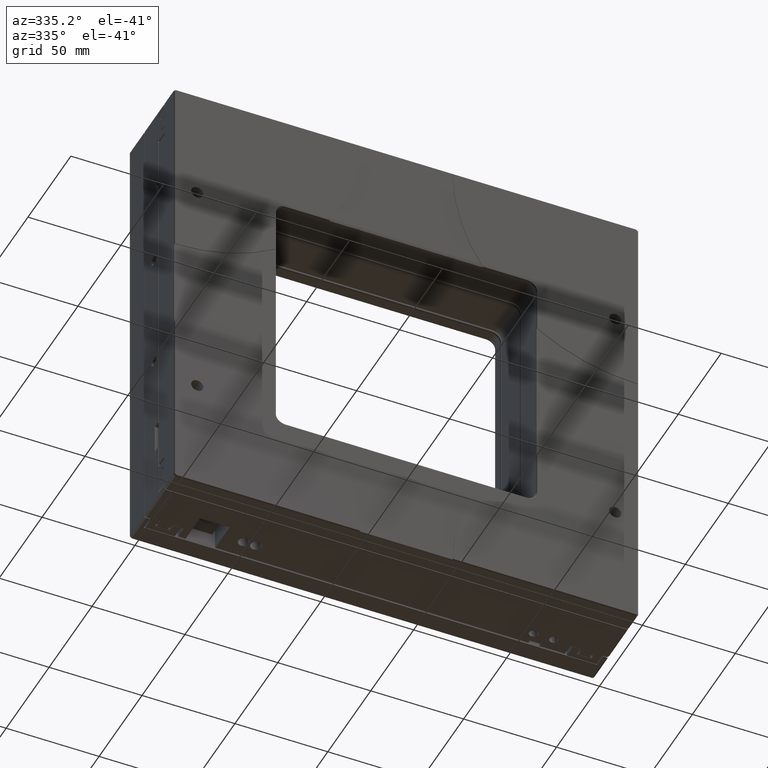
[diagram: clean part render]
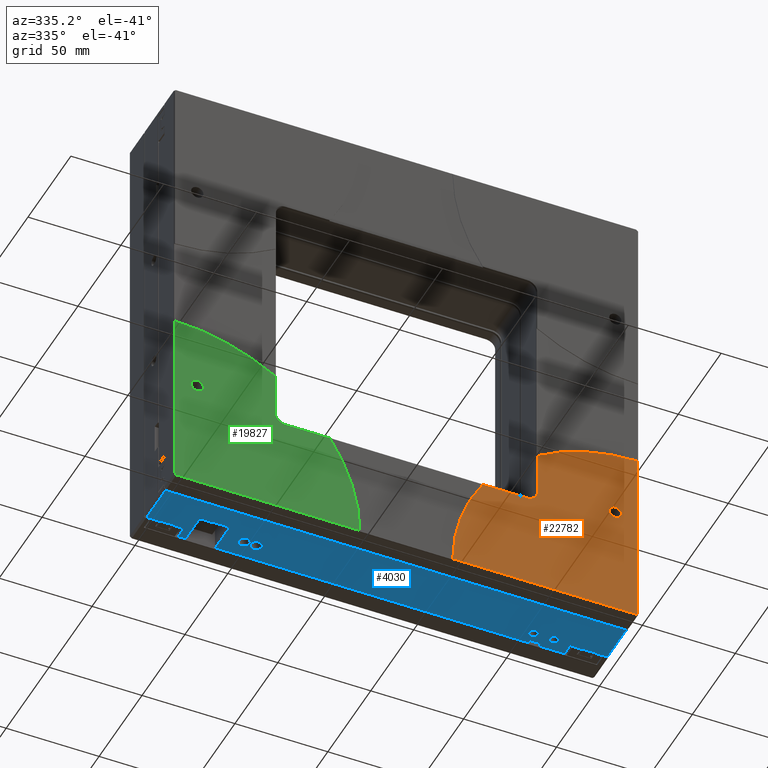
[diagram: same view with three faces highlighted in distinct colors, each labeled with its STEP entity id]
A machine part, auxiliary view with three faces highlighted in distinct colors.
Their STEP definitions:

[orange] entity #22782 — the highlighted planar face has unit normal (0, -1, -0).
#158 = VERTEX_POINT ( 'NONE', #1872 ) ;
#205 = EDGE_CURVE ( 'NONE', #3092, #4318, #18476, .T. ) ;
#487 = CARTESIAN_POINT ( 'NONE',  ( -61.24777213772141200, 9.027749076748583700E-015, 62.49999999999995700 ) ) ;
#620 = FACE_OUTER_BOUND ( 'NONE', #1025, .T. ) ;
#903 = AXIS2_PLACEMENT_3D ( 'NONE', #11614, #20793, #4041 ) ;
#1025 = EDGE_LOOP ( 'NONE', ( #13777, #7904, #13122, #13341, #5282, #1221, #9656, #17572 ) ) ;
#1221 = ORIENTED_EDGE ( 'NONE', *, *, #17431, .T. ) ;
#1379 = CARTESIAN_POINT ( 'NONE',  ( -106.5477721377214100, 9.333910776535423200E-015, 59.99999999999995700 ) ) ;
#1650 = AXIS2_PLACEMENT_3D ( 'NONE', #15291, #13428, #6036 ) ;
#1680 = DIRECTION ( 'NONE',  ( 0.0000000000000000000, -1.224646799147353200E-016, 1.000000000000000000 ) ) ;
#1694 = EDGE_CURVE ( 'NONE', #158, #10270, #18138, .T. ) ;
#1872 = CARTESIAN_POINT ( 'NONE',  ( -152.0465221299088200, 1.662055923146218000E-014, 0.4999999999999171800 ) ) ;
#1910 = CARTESIAN_POINT ( 'NONE',  ( -52.54777213772135300, 4.435476661752665800E-015, 99.99874999218738500 ) ) ;
#2093 = DIRECTION ( 'NONE',  ( -1.000000000000000000, 0.0000000000000000000, 0.0000000000000000000 ) ) ;
#2527 = CARTESIAN_POINT ( 'NONE',  ( -52.54777213772135300, 1.653396362583862400E-014, 1.207106781186503900 ) ) ;
#2577 = CARTESIAN_POINT ( 'NONE',  ( -135.8913765449748300, 1.000746651606646700E-014, 54.49999999999995000 ) ) ;
#3090 = AXIS2_PLACEMENT_3D ( 'NONE', #10990, #3739, #5825 ) ;
#3092 = VERTEX_POINT ( 'NONE', #12481 ) ;
#3283 = DIRECTION ( 'NONE',  ( 0.0000000000000000000, 1.224646799147353200E-016, -1.000000000000000000 ) ) ;
#3739 = DIRECTION ( 'NONE',  ( 0.0000000000000000000, -1.000000000000000000, -1.224646799147353200E-016 ) ) ;
#4041 = DIRECTION ( 'NONE',  ( -1.000000000000000000, 0.0000000000000000000, 0.0000000000000000000 ) ) ;
#4318 = VERTEX_POINT ( 'NONE', #1910 ) ;
#4548 = CARTESIAN_POINT ( 'NONE',  ( -106.5477721377214100, 9.333910776535423200E-015, 59.99999999999995700 ) ) ;
#5282 = ORIENTED_EDGE ( 'NONE', *, *, #14250, .T. ) ;
#5464 = CARTESIAN_POINT ( 'NONE',  ( -64.54777213772141000, 9.027749076748583700E-015, 62.49999999999995700 ) ) ;
#5825 = DIRECTION ( 'NONE',  ( -1.000000000000000000, 0.0000000000000000000, -0.0000000000000000000 ) ) ;
#6036 = DIRECTION ( 'NONE',  ( -1.000000000000000000, 0.0000000000000000000, 0.0000000000000000000 ) ) ;
#6092 = VERTEX_POINT ( 'NONE', #4548 ) ;
#6932 = CIRCLE ( 'NONE', #14923, 3.299999999999997200 ) ;
#7151 = DIRECTION ( 'NONE',  ( -0.0000000000000000000, 1.000000000000000000, 1.224646799147353200E-016 ) ) ;
#7489 = LINE ( 'NONE', #18080, #11769 ) ;
#7904 = ORIENTED_EDGE ( 'NONE', *, *, #15558, .T. ) ;
#8166 = VECTOR ( 'NONE', #2093, 1000.000000000000000 ) ;
#8689 = LINE ( 'NONE', #1379, #15847 ) ;
#9028 = VERTEX_POINT ( 'NONE', #9328 ) ;
#9120 = DIRECTION ( 'NONE',  ( 0.0000000000000000000, 1.000000000000000000, 1.224646799147353200E-016 ) ) ;
#9328 = CARTESIAN_POINT ( 'NONE',  ( -112.0477721377214200, 1.000746651606646700E-014, 54.49999999999995000 ) ) ;
#9656 = ORIENTED_EDGE ( 'NONE', *, *, #205, .F. ) ;
#9789 = LINE ( 'NONE', #22406, #23043 ) ;
#10270 = VERTEX_POINT ( 'NONE', #2577 ) ;
#10714 = EDGE_CURVE ( 'NONE', #18046, #22273, #6932, .T. ) ;
#10990 = CARTESIAN_POINT ( 'NONE',  ( -177.0477721377214100, 1.373706582077625900E-015, 124.9999999999999600 ) ) ;
#11138 = PLANE ( 'NONE',  #3090 ) ;
#11614 = CARTESIAN_POINT ( 'NONE',  ( -52.04777213772141000, 1.668179157141953800E-014, -2.775557561562891400E-014 ) ) ;
#11688 = AXIS2_PLACEMENT_3D ( 'NONE', #18130, #7151, #21848 ) ;
#11769 = VECTOR ( 'NONE', #1680, 1000.000000000000000 ) ;
#12481 = CARTESIAN_POINT ( 'NONE',  ( -106.5477721377214100, 6.413911394787560400E-015, 83.84360440725336600 ) ) ;
#13091 = CARTESIAN_POINT ( 'NONE',  ( -135.5642375801717800, 1.000746651606646700E-014, 54.49999999999995000 ) ) ;
#13122 = ORIENTED_EDGE ( 'NONE', *, *, #1694, .F. ) ;
#13341 = ORIENTED_EDGE ( 'NONE', *, *, #23416, .T. ) ;
#13428 = DIRECTION ( 'NONE',  ( 0.0000000000000000000, 1.000000000000000000, 1.224646799147353200E-016 ) ) ;
#13777 = ORIENTED_EDGE ( 'NONE', *, *, #16524, .T. ) ;
#14250 = EDGE_CURVE ( 'NONE', #22003, #23620, #15019, .T. ) ;
#14315 = CARTESIAN_POINT ( 'NONE',  ( -53.25487891890797000, 1.662055923146218000E-014, 0.4999999999999171800 ) ) ;
#14496 = CARTESIAN_POINT ( 'NONE',  ( -67.84777213772140700, 9.027749076748583700E-015, 62.49999999999995700 ) ) ;
#14923 = AXIS2_PLACEMENT_3D ( 'NONE', #15229, #18707, #16932 ) ;
#15019 = LINE ( 'NONE', #15711, #16196 ) ;
#15229 = CARTESIAN_POINT ( 'NONE',  ( -64.54777213772141000, 9.027749076748583700E-015, 62.49999999999995700 ) ) ;
#15291 = CARTESIAN_POINT ( 'NONE',  ( -52.04777213772141000, 1.668179157141953800E-014, -2.775557561562891400E-014 ) ) ;
#15558 = EDGE_CURVE ( 'NONE', #9028, #10270, #21122, .T. ) ;
#15679 = ORIENTED_EDGE ( 'NONE', *, *, #19520, .T. ) ;
#15711 = CARTESIAN_POINT ( 'NONE',  ( -52.90132552831897100, 1.657726142865092800E-014, 0.8535533905889014500 ) ) ;
#15847 = VECTOR ( 'NONE', #3283, 1000.000000000000000 ) ;
#16196 = VECTOR ( 'NONE', #21197, 1000.000000000000000 ) ;
#16377 = EDGE_LOOP ( 'NONE', ( #15679, #20908 ) ) ;
#16524 = EDGE_CURVE ( 'NONE', #6092, #9028, #17601, .T. ) ;
#16860 = AXIS2_PLACEMENT_3D ( 'NONE', #5464, #9120, #21989 ) ;
#16932 = DIRECTION ( 'NONE',  ( 1.000000000000000000, 0.0000000000000000000, 0.0000000000000000000 ) ) ;
#16950 = EDGE_CURVE ( 'NONE', #3092, #6092, #8689, .T. ) ;
#17431 = EDGE_CURVE ( 'NONE', #23620, #4318, #7489, .T. ) ;
#17572 = ORIENTED_EDGE ( 'NONE', *, *, #16950, .T. ) ;
#17601 = CIRCLE ( 'NONE', #11688, 5.500000000000005300 ) ;
#18046 = VERTEX_POINT ( 'NONE', #14496 ) ;
#18080 = CARTESIAN_POINT ( 'NONE',  ( -52.54777213772135300, 1.373706582077625900E-015, 124.9999999999999600 ) ) ;
#18130 = CARTESIAN_POINT ( 'NONE',  ( -112.0477721377214200, 9.333910776535423200E-015, 59.99999999999995700 ) ) ;
#18138 = CIRCLE ( 'NONE', #903, 100.0000000000000000 ) ;
#18476 = CIRCLE ( 'NONE', #1650, 100.0000000000000000 ) ;
#18546 = DIRECTION ( 'NONE',  ( 1.000000000000000000, 0.0000000000000000000, 0.0000000000000000000 ) ) ;
#18707 = DIRECTION ( 'NONE',  ( 0.0000000000000000000, 1.000000000000000000, 1.224646799147353200E-016 ) ) ;
#19520 = EDGE_CURVE ( 'NONE', #22273, #18046, #23257, .T. ) ;
#20793 = DIRECTION ( 'NONE',  ( 0.0000000000000000000, 1.000000000000000000, 1.224646799147353200E-016 ) ) ;
#20908 = ORIENTED_EDGE ( 'NONE', *, *, #10714, .T. ) ;
#21122 = LINE ( 'NONE', #13091, #8166 ) ;
#21197 = DIRECTION ( 'NONE',  ( 0.7071067811865721100, -8.659560562354633300E-017, 0.7071067811865230400 ) ) ;
#21848 = DIRECTION ( 'NONE',  ( -1.000000000000000000, 0.0000000000000000000, 0.0000000000000000000 ) ) ;
#21989 = DIRECTION ( 'NONE',  ( 1.000000000000000000, 0.0000000000000000000, 0.0000000000000000000 ) ) ;
#22003 = VERTEX_POINT ( 'NONE', #14315 ) ;
#22273 = VERTEX_POINT ( 'NONE', #487 ) ;
#22406 = CARTESIAN_POINT ( 'NONE',  ( -53.04777213772146600, 1.662055923146218000E-014, 0.4999999999999171800 ) ) ;
#22782 = ADVANCED_FACE ( 'NONE', ( #620, #23374 ), #11138, .T. ) ;
#23043 = VECTOR ( 'NONE', #18546, 1000.000000000000000 ) ;
#23257 = CIRCLE ( 'NONE', #16860, 3.299999999999997200 ) ;
#23374 = FACE_BOUND ( 'NONE', #16377, .T. ) ;
#23416 = EDGE_CURVE ( 'NONE', #158, #22003, #9789, .T. ) ;
#23620 = VERTEX_POINT ( 'NONE', #2527 ) ;

[blue] entity #4030 — the highlighted planar face has unit normal (-0, -0, 1).
#20 = CARTESIAN_POINT ( 'NONE',  ( -277.0477721377215500, 40.80000000000006100, -4.163336342344337000E-014 ) ) ;
#69 = DIRECTION ( 'NONE',  ( 1.000000000000000000, -5.268570399476662800E-032, 4.302114212150675500E-016 ) ) ;
#119 = DIRECTION ( 'NONE',  ( 0.0000000000000000000, 1.000000000000000000, 1.224646799147346600E-016 ) ) ;
#195 = VERTEX_POINT ( 'NONE', #13111 ) ;
#397 = ORIENTED_EDGE ( 'NONE', *, *, #3860, .T. ) ;
#440 = VERTEX_POINT ( 'NONE', #16352 ) ;
#513 = VECTOR ( 'NONE', #858, 1000.000000000000000 ) ;
#541 = EDGE_CURVE ( 'NONE', #8232, #3272, #23407, .T. ) ;
#858 = DIRECTION ( 'NONE',  ( 1.000000000000000000, -5.268570399476662800E-032, 4.302114212150675500E-016 ) ) ;
#1022 = CARTESIAN_POINT ( 'NONE',  ( -287.0477721377215500, 34.00000000000004300, -4.163336342344337000E-014 ) ) ;
#1130 = AXIS2_PLACEMENT_3D ( 'NONE', #8519, #15910, #8690 ) ;
#1415 = CARTESIAN_POINT ( 'NONE',  ( -287.0477721377215500, 34.30000000000001100, -4.163336342344337000E-014 ) ) ;
#1581 = DIRECTION ( 'NONE',  ( -9.714451382752058500E-017, -1.224646799147353200E-016, 1.000000000000000000 ) ) ;
#1638 = AXIS2_PLACEMENT_3D ( 'NONE', #9150, #14907, #119 ) ;
#1784 = CARTESIAN_POINT ( 'NONE',  ( -92.54777213772152300, 12.00000000000004600, 4.163336342344337000E-014 ) ) ;
#1799 = ORIENTED_EDGE ( 'NONE', *, *, #13390, .T. ) ;
#1813 = CARTESIAN_POINT ( 'NONE',  ( -287.0477721377215500, 34.00000000000004300, -4.163336342344337000E-014 ) ) ;
#1828 = EDGE_LOOP ( 'NONE', ( #8305, #11443 ) ) ;
#1970 = VERTEX_POINT ( 'NONE', #19799 ) ;
#2023 = LINE ( 'NONE', #11069, #4090 ) ;
#2129 = DIRECTION ( 'NONE',  ( 0.0000000000000000000, 1.000000000000000000, 1.224646799147353000E-016 ) ) ;
#2132 = VERTEX_POINT ( 'NONE', #20284 ) ;
#2283 = VECTOR ( 'NONE', #4537, 1000.000000000000000 ) ;
#2285 = EDGE_CURVE ( 'NONE', #3284, #23711, #10896, .T. ) ;
#2336 = VERTEX_POINT ( 'NONE', #4551 ) ;
#2511 = CARTESIAN_POINT ( 'NONE',  ( -93.04777213772152300, 31.15000000000003800, 4.134557142564374500E-014 ) ) ;
#2572 = CARTESIAN_POINT ( 'NONE',  ( -243.5477721377214900, 31.00000000000004300, -4.163336342344337000E-014 ) ) ;
#2611 = CARTESIAN_POINT ( 'NONE',  ( -52.04777213772152300, 39.00000000000004300, 5.551115123125782700E-014 ) ) ;
#2721 = ORIENTED_EDGE ( 'NONE', *, *, #4724, .F. ) ;
#2822 = DIRECTION ( 'NONE',  ( -9.714451382752058500E-017, -1.224646799147353200E-016, 1.000000000000000000 ) ) ;
#2951 = VECTOR ( 'NONE', #8617, 1000.000000000000000 ) ;
#3158 = EDGE_CURVE ( 'NONE', #8511, #19379, #11284, .T. ) ;
#3159 = CARTESIAN_POINT ( 'NONE',  ( -250.0477721377214900, 31.00000000000004300, -4.163336342344337000E-014 ) ) ;
#3272 = VERTEX_POINT ( 'NONE', #11432 ) ;
#3284 = VERTEX_POINT ( 'NONE', #5880 ) ;
#3368 = DIRECTION ( 'NONE',  ( 0.0000000000000000000, 1.000000000000000000, 1.224646799147345300E-016 ) ) ;
#3418 = DIRECTION ( 'NONE',  ( 0.0000000000000000000, 1.000000000000000000, 1.224646799147345300E-016 ) ) ;
#3462 = CARTESIAN_POINT ( 'NONE',  ( -60.04777213772151600, 34.30000000000006800, 5.551115123125782700E-014 ) ) ;
#3491 = LINE ( 'NONE', #16791, #2283 ) ;
#3796 = CARTESIAN_POINT ( 'NONE',  ( -86.54777213772152300, 12.00000000000004600, 4.163336342344337000E-014 ) ) ;
#3836 = LINE ( 'NONE', #8227, #12083 ) ;
#3860 = EDGE_CURVE ( 'NONE', #11099, #440, #10944, .T. ) ;
#3987 = ORIENTED_EDGE ( 'NONE', *, *, #9146, .T. ) ;
#4024 = LINE ( 'NONE', #22200, #12293 ) ;
#4030 = ADVANCED_FACE ( 'NONE', ( #18446, #17278, #17577, #20747, #12356 ), #23245, .F. ) ;
#4090 = VECTOR ( 'NONE', #18507, 1000.000000000000000 ) ;
#4154 = CIRCLE ( 'NONE', #23408, 2.350000000000005000 ) ;
#4283 = EDGE_CURVE ( 'NONE', #15007, #11099, #19872, .T. ) ;
#4289 = CARTESIAN_POINT ( 'NONE',  ( -73.04777213772148100, 40.80000000000006100, 4.163336342344337000E-014 ) ) ;
#4347 = EDGE_CURVE ( 'NONE', #1970, #8190, #2023, .T. ) ;
#4385 = VECTOR ( 'NONE', #11716, 1000.000000000000000 ) ;
#4389 = DIRECTION ( 'NONE',  ( -9.714451382752058500E-017, -1.224646799147353200E-016, 1.000000000000000000 ) ) ;
#4458 = CARTESIAN_POINT ( 'NONE',  ( -92.54777213772152300, 40.80000000000006100, 4.163336342344337000E-014 ) ) ;
#4530 = VERTEX_POINT ( 'NONE', #20983 ) ;
#4537 = DIRECTION ( 'NONE',  ( -1.000000000000000000, 5.268570399476662800E-032, -4.302114212150676000E-016 ) ) ;
#4551 = CARTESIAN_POINT ( 'NONE',  ( -73.04777213772148100, 40.80000000000006100, 4.163336342344337000E-014 ) ) ;
#4724 = EDGE_CURVE ( 'NONE', #6382, #23502, #11470, .T. ) ;
#4886 = EDGE_CURVE ( 'NONE', #16403, #17939, #15496, .T. ) ;
#4923 = AXIS2_PLACEMENT_3D ( 'NONE', #17919, #23505, #3418 ) ;
#5024 = VERTEX_POINT ( 'NONE', #8000 ) ;
#5056 = ORIENTED_EDGE ( 'NONE', *, *, #15501, .T. ) ;
#5542 = DIRECTION ( 'NONE',  ( 0.0000000000000000000, -1.000000000000000000, -1.224646799147353000E-016 ) ) ;
#5624 = EDGE_CURVE ( 'NONE', #9455, #4530, #14579, .T. ) ;
#5695 = VECTOR ( 'NONE', #8323, 1000.000000000000000 ) ;
#5732 = VERTEX_POINT ( 'NONE', #17928 ) ;
#5767 = ORIENTED_EDGE ( 'NONE', *, *, #6537, .F. ) ;
#5773 = CARTESIAN_POINT ( 'NONE',  ( -86.54777213772152300, 39.00000000000004300, 2.775557561562891400E-014 ) ) ;
#5880 = CARTESIAN_POINT ( 'NONE',  ( -243.5477721377214900, 34.00000000000005000, -4.126596938369916500E-014 ) ) ;
#6077 = VECTOR ( 'NONE', #20171, 1000.000000000000000 ) ;
#6084 = ORIENTED_EDGE ( 'NONE', *, *, #19166, .T. ) ;
#6086 = LINE ( 'NONE', #23200, #19553 ) ;
#6155 = DIRECTION ( 'NONE',  ( 1.000000000000000000, -5.268570399476662800E-032, 4.302114212150675500E-016 ) ) ;
#6273 = ORIENTED_EDGE ( 'NONE', *, *, #13850, .F. ) ;
#6382 = VERTEX_POINT ( 'NONE', #1813 ) ;
#6529 = VECTOR ( 'NONE', #5542, 1000.000000000000000 ) ;
#6537 = EDGE_CURVE ( 'NONE', #17784, #3272, #22638, .T. ) ;
#6643 = VECTOR ( 'NONE', #13871, 1000.000000000000000 ) ;
#6694 = CARTESIAN_POINT ( 'NONE',  ( -281.0477721377215500, 34.30000000000001100, -4.163336342344337000E-014 ) ) ;
#6812 = DIRECTION ( 'NONE',  ( 1.000000000000000000, -5.268570399476662800E-032, 4.302114212150675500E-016 ) ) ;
#6898 = CARTESIAN_POINT ( 'NONE',  ( -93.04777213772152300, 33.50000000000004300, 4.163336342344337000E-014 ) ) ;
#7010 = VECTOR ( 'NONE', #12783, 1000.000000000000000 ) ;
#7242 = CARTESIAN_POINT ( 'NONE',  ( -73.04777213772148100, 34.50000000000003600, 4.163336342344337000E-014 ) ) ;
#7259 = EDGE_CURVE ( 'NONE', #8480, #10580, #23496, .T. ) ;
#7330 = VECTOR ( 'NONE', #6812, 1000.000000000000000 ) ;
#7392 = ORIENTED_EDGE ( 'NONE', *, *, #541, .T. ) ;
#7483 = CIRCLE ( 'NONE', #16487, 3.000000000000009800 ) ;
#7484 = DIRECTION ( 'NONE',  ( 1.000000000000000000, -5.268570399476662800E-032, 4.302114212150675500E-016 ) ) ;
#7485 = VECTOR ( 'NONE', #9111, 1000.000000000000000 ) ;
#7529 = DIRECTION ( 'NONE',  ( 0.0000000000000000000, 1.000000000000000000, 1.224646799147353000E-016 ) ) ;
#7696 = ORIENTED_EDGE ( 'NONE', *, *, #23850, .T. ) ;
#7713 = VERTEX_POINT ( 'NONE', #6694 ) ;
#8000 = CARTESIAN_POINT ( 'NONE',  ( -60.04777213772151600, 34.00000000000004300, 5.551115123125782700E-014 ) ) ;
#8116 = CARTESIAN_POINT ( 'NONE',  ( -243.5477721377214900, 31.00000000000004300, -4.163336342344337000E-014 ) ) ;
#8190 = VERTEX_POINT ( 'NONE', #13756 ) ;
#8193 = LINE ( 'NONE', #22449, #9919 ) ;
#8227 = CARTESIAN_POINT ( 'NONE',  ( -301.0477721377215500, 12.00000000000004600, -4.163336342344337000E-014 ) ) ;
#8232 = VERTEX_POINT ( 'NONE', #20866 ) ;
#8274 = EDGE_CURVE ( 'NONE', #440, #22208, #13028, .T. ) ;
#8305 = ORIENTED_EDGE ( 'NONE', *, *, #22034, .T. ) ;
#8323 = DIRECTION ( 'NONE',  ( 0.0000000000000000000, 1.000000000000000000, 1.224646799147353000E-016 ) ) ;
#8384 = DIRECTION ( 'NONE',  ( -9.714451382752059700E-017, -1.224646799147353200E-016, 1.000000000000000000 ) ) ;
#8480 = VERTEX_POINT ( 'NONE', #2511 ) ;
#8511 = VERTEX_POINT ( 'NONE', #5773 ) ;
#8519 = CARTESIAN_POINT ( 'NONE',  ( -52.04777213772152300, 12.00000000000004600, 5.551115123125782700E-014 ) ) ;
#8617 = DIRECTION ( 'NONE',  ( 0.0000000000000000000, -1.000000000000000000, -1.224646799147353000E-016 ) ) ;
#8631 = ORIENTED_EDGE ( 'NONE', *, *, #23890, .T. ) ;
#8690 = DIRECTION ( 'NONE',  ( -0.0000000000000000000, 1.000000000000000000, 1.224646799147353000E-016 ) ) ;
#8701 = ORIENTED_EDGE ( 'NONE', *, *, #20477, .T. ) ;
#8747 = EDGE_CURVE ( 'NONE', #17939, #18314, #23081, .T. ) ;
#9047 = CIRCLE ( 'NONE', #17349, 3.000000000000009800 ) ;
#9107 = CARTESIAN_POINT ( 'NONE',  ( -261.0477721377214900, 24.00000000000004300, 1.665334536937734800E-013 ) ) ;
#9111 = DIRECTION ( 'NONE',  ( 0.0000000000000000000, 1.000000000000000000, 1.224646799147353000E-016 ) ) ;
#9146 = EDGE_CURVE ( 'NONE', #19379, #2336, #13515, .T. ) ;
#9150 = CARTESIAN_POINT ( 'NONE',  ( -250.0477721377214900, 31.00000000000004300, -4.163336342344337000E-014 ) ) ;
#9342 = CARTESIAN_POINT ( 'NONE',  ( -301.0477721377215500, 12.20000000000013400, -4.163336342344337000E-014 ) ) ;
#9455 = VERTEX_POINT ( 'NONE', #23697 ) ;
#9802 = VECTOR ( 'NONE', #6155, 1000.000000000000000 ) ;
#9864 = ORIENTED_EDGE ( 'NONE', *, *, #10530, .T. ) ;
#9880 = CARTESIAN_POINT ( 'NONE',  ( -92.54777213772152300, 39.00000000000004300, 2.775557561562891400E-014 ) ) ;
#9919 = VECTOR ( 'NONE', #22205, 1000.000000000000000 ) ;
#9970 = ORIENTED_EDGE ( 'NONE', *, *, #8274, .T. ) ;
#10132 = ORIENTED_EDGE ( 'NONE', *, *, #18414, .T. ) ;
#10530 = EDGE_CURVE ( 'NONE', #20824, #2132, #7483, .T. ) ;
#10580 = VERTEX_POINT ( 'NONE', #10976 ) ;
#10640 = DIRECTION ( 'NONE',  ( -9.714451382752059700E-017, -1.224646799147353200E-016, 1.000000000000000000 ) ) ;
#10827 = DIRECTION ( 'NONE',  ( 0.0000000000000000000, 1.000000000000000000, 1.224646799147352700E-016 ) ) ;
#10896 = CIRCLE ( 'NONE', #23912, 3.000000000000009800 ) ;
#10922 = VECTOR ( 'NONE', #69, 1000.000000000000000 ) ;
#10944 = LINE ( 'NONE', #20603, #4385 ) ;
#10976 = CARTESIAN_POINT ( 'NONE',  ( -93.04777213772152300, 35.85000000000005100, 4.192115542124299500E-014 ) ) ;
#11006 = CIRCLE ( 'NONE', #20914, 2.350000000000005000 ) ;
#11033 = LINE ( 'NONE', #7242, #12455 ) ;
#11069 = CARTESIAN_POINT ( 'NONE',  ( -52.04777213772152300, 34.30000000000001100, 5.551115123125782700E-014 ) ) ;
#11099 = VERTEX_POINT ( 'NONE', #20 ) ;
#11108 = CARTESIAN_POINT ( 'NONE',  ( -281.0477721377215500, 40.80000000000006100, -4.163336342344337000E-014 ) ) ;
#11284 = LINE ( 'NONE', #3796, #19646 ) ;
#11432 = CARTESIAN_POINT ( 'NONE',  ( -67.04777213772152300, 34.30000000000001100, 4.163336342344337000E-014 ) ) ;
#11443 = ORIENTED_EDGE ( 'NONE', *, *, #7259, .T. ) ;
#11470 = LINE ( 'NONE', #1022, #6643 ) ;
#11594 = EDGE_LOOP ( 'NONE', ( #21093, #17509 ) ) ;
#11620 = ORIENTED_EDGE ( 'NONE', *, *, #3158, .T. ) ;
#11716 = DIRECTION ( 'NONE',  ( 0.0000000000000000000, -1.000000000000000000, -1.224646799147353000E-016 ) ) ;
#11742 = CARTESIAN_POINT ( 'NONE',  ( -294.0477721377215500, 34.00000000000004300, -4.163336342344337000E-014 ) ) ;
#11906 = CARTESIAN_POINT ( 'NONE',  ( -53.04777213772150900, 12.20000000000013400, 5.551115123125782700E-014 ) ) ;
#11966 = CARTESIAN_POINT ( 'NONE',  ( -250.0477721377214900, 34.00000000000005000, -4.126596938369916500E-014 ) ) ;
#12067 = DIRECTION ( 'NONE',  ( 0.0000000000000000000, 1.000000000000000000, 1.224646799147345300E-016 ) ) ;
#12083 = VECTOR ( 'NONE', #13669, 1000.000000000000000 ) ;
#12293 = VECTOR ( 'NONE', #7484, 1000.000000000000000 ) ;
#12335 = LINE ( 'NONE', #23682, #13189 ) ;
#12356 = FACE_OUTER_BOUND ( 'NONE', #14008, .T. ) ;
#12401 = EDGE_CURVE ( 'NONE', #23502, #8190, #21496, .T. ) ;
#12455 = VECTOR ( 'NONE', #10827, 1000.000000000000000 ) ;
#12783 = DIRECTION ( 'NONE',  ( 1.000000000000000000, -5.268570399476662800E-032, 4.302114212150675500E-016 ) ) ;
#13028 = LINE ( 'NONE', #21271, #7330 ) ;
#13033 = LINE ( 'NONE', #18592, #22862 ) ;
#13111 = CARTESIAN_POINT ( 'NONE',  ( -261.0477721377214900, 40.80000000000006100, -4.163336342344337000E-014 ) ) ;
#13189 = VECTOR ( 'NONE', #17778, 1000.000000000000000 ) ;
#13346 = DIRECTION ( 'NONE',  ( 1.000000000000000000, -5.268570399476662800E-032, 4.302114212150675500E-016 ) ) ;
#13390 = EDGE_CURVE ( 'NONE', #7713, #15007, #8193, .T. ) ;
#13515 = LINE ( 'NONE', #4289, #9802 ) ;
#13669 = DIRECTION ( 'NONE',  ( 0.0000000000000000000, 1.000000000000000000, 1.224646799147353000E-016 ) ) ;
#13756 = CARTESIAN_POINT ( 'NONE',  ( -294.0477721377215500, 34.30000000000001100, -4.163336342344337000E-014 ) ) ;
#13850 = EDGE_CURVE ( 'NONE', #8232, #2336, #11033, .T. ) ;
#13871 = DIRECTION ( 'NONE',  ( -1.000000000000000000, 5.268570399476662800E-032, -4.302114212150676000E-016 ) ) ;
#14008 = EDGE_LOOP ( 'NONE', ( #23302, #7696, #15797, #17492, #18985, #2721, #10132, #6084, #1799, #17163, #397, #9970, #8631, #18250, #8701, #17168, #11620, #3987, #6273, #7392, #5767, #23650, #5056, #16056 ) ) ;
#14464 = CIRCLE ( 'NONE', #1638, 3.000000000000009800 ) ;
#14579 = CIRCLE ( 'NONE', #17469, 2.350000000000005000 ) ;
#14588 = LINE ( 'NONE', #4458, #513 ) ;
#14907 = DIRECTION ( 'NONE',  ( -9.714451382752058500E-017, -1.224646799147353200E-016, 1.000000000000000000 ) ) ;
#15007 = VERTEX_POINT ( 'NONE', #11108 ) ;
#15215 = LINE ( 'NONE', #16419, #7485 ) ;
#15490 = VERTEX_POINT ( 'NONE', #9342 ) ;
#15496 = LINE ( 'NONE', #22181, #6077 ) ;
#15501 = EDGE_CURVE ( 'NONE', #5024, #16403, #13033, .T. ) ;
#15572 = CARTESIAN_POINT ( 'NONE',  ( -67.04777213772152300, 34.00000000000004300, 4.163336342344337000E-014 ) ) ;
#15650 = CARTESIAN_POINT ( 'NONE',  ( -86.54777213772152300, 40.80000000000006100, 4.163336342344337000E-014 ) ) ;
#15707 = CARTESIAN_POINT ( 'NONE',  ( -82.04777213772152300, 33.50000000000004300, 4.163336342344337000E-014 ) ) ;
#15759 = CARTESIAN_POINT ( 'NONE',  ( -53.04777213772150900, 12.00000000000004600, 5.551115123125782700E-014 ) ) ;
#15797 = ORIENTED_EDGE ( 'NONE', *, *, #16807, .T. ) ;
#15910 = DIRECTION ( 'NONE',  ( -9.714451382752057200E-017, -1.224646799147353000E-016, 1.000000000000000000 ) ) ;
#15972 = CARTESIAN_POINT ( 'NONE',  ( -53.04777213772150900, 34.30000000000006800, 5.551115123125782700E-014 ) ) ;
#16056 = ORIENTED_EDGE ( 'NONE', *, *, #4886, .T. ) ;
#16352 = CARTESIAN_POINT ( 'NONE',  ( -277.0477721377215500, 24.00000000000004300, 1.665334536937734800E-013 ) ) ;
#16403 = VERTEX_POINT ( 'NONE', #3462 ) ;
#16419 = CARTESIAN_POINT ( 'NONE',  ( -261.0477721377214900, 12.00000000000004600, -4.163336342344337000E-014 ) ) ;
#16487 = AXIS2_PLACEMENT_3D ( 'NONE', #3159, #1581, #21556 ) ;
#16791 = CARTESIAN_POINT ( 'NONE',  ( -67.04777213772152300, 34.00000000000004300, 4.163336342344337000E-014 ) ) ;
#16807 = EDGE_CURVE ( 'NONE', #15490, #1970, #3836, .T. ) ;
#16842 = EDGE_LOOP ( 'NONE', ( #9864, #19230 ) ) ;
#16988 = EDGE_LOOP ( 'NONE', ( #22733, #19817 ) ) ;
#17163 = ORIENTED_EDGE ( 'NONE', *, *, #4283, .T. ) ;
#17168 = ORIENTED_EDGE ( 'NONE', *, *, #23504, .T. ) ;
#17196 = DIRECTION ( 'NONE',  ( 0.0000000000000000000, 1.000000000000000000, 1.224646799147346600E-016 ) ) ;
#17278 = FACE_BOUND ( 'NONE', #1828, .T. ) ;
#17349 = AXIS2_PLACEMENT_3D ( 'NONE', #2572, #2822, #21066 ) ;
#17469 = AXIS2_PLACEMENT_3D ( 'NONE', #19317, #8384, #21255 ) ;
#17492 = ORIENTED_EDGE ( 'NONE', *, *, #4347, .T. ) ;
#17509 = ORIENTED_EDGE ( 'NONE', *, *, #21246, .T. ) ;
#17559 = DIRECTION ( 'NONE',  ( -9.714451382752059700E-017, -1.224646799147353200E-016, 1.000000000000000000 ) ) ;
#17577 = FACE_BOUND ( 'NONE', #16842, .T. ) ;
#17721 = EDGE_CURVE ( 'NONE', #5024, #17784, #3491, .T. ) ;
#17778 = DIRECTION ( 'NONE',  ( -1.000000000000000000, 5.268570399476662800E-032, -4.302114212150675500E-016 ) ) ;
#17784 = VERTEX_POINT ( 'NONE', #15572 ) ;
#17919 = CARTESIAN_POINT ( 'NONE',  ( -93.04777213772152300, 33.50000000000004300, 4.163336342344337000E-014 ) ) ;
#17928 = CARTESIAN_POINT ( 'NONE',  ( -92.54777213772152300, 40.80000000000006100, 4.163336342344337000E-014 ) ) ;
#17939 = VERTEX_POINT ( 'NONE', #15972 ) ;
#18023 = VERTEX_POINT ( 'NONE', #1415 ) ;
#18067 = CARTESIAN_POINT ( 'NONE',  ( -277.0477721377215500, 40.80000000000006100, -4.163336342344337000E-014 ) ) ;
#18250 = ORIENTED_EDGE ( 'NONE', *, *, #19306, .T. ) ;
#18314 = VERTEX_POINT ( 'NONE', #11906 ) ;
#18414 = EDGE_CURVE ( 'NONE', #6382, #18023, #6086, .T. ) ;
#18444 = CARTESIAN_POINT ( 'NONE',  ( -67.04777213772152300, 34.30000000000001100, 4.163336342344337000E-014 ) ) ;
#18446 = FACE_BOUND ( 'NONE', #16988, .T. ) ;
#18507 = DIRECTION ( 'NONE',  ( 1.000000000000000000, -5.268570399476662800E-032, 4.302114212150675500E-016 ) ) ;
#18592 = CARTESIAN_POINT ( 'NONE',  ( -60.04777213772151600, 34.00000000000004300, 5.551115123125782700E-014 ) ) ;
#18827 = DIRECTION ( 'NONE',  ( 0.0000000000000000000, 1.000000000000000000, 1.224646799147353000E-016 ) ) ;
#18985 = ORIENTED_EDGE ( 'NONE', *, *, #12401, .F. ) ;
#18991 = LINE ( 'NONE', #2611, #19871 ) ;
#19166 = EDGE_CURVE ( 'NONE', #18023, #7713, #4024, .T. ) ;
#19230 = ORIENTED_EDGE ( 'NONE', *, *, #21623, .T. ) ;
#19306 = EDGE_CURVE ( 'NONE', #195, #5732, #14588, .T. ) ;
#19317 = CARTESIAN_POINT ( 'NONE',  ( -82.04777213772152300, 33.50000000000004300, 4.163336342344337000E-014 ) ) ;
#19379 = VERTEX_POINT ( 'NONE', #15650 ) ;
#19553 = VECTOR ( 'NONE', #21675, 1000.000000000000000 ) ;
#19646 = VECTOR ( 'NONE', #7529, 1000.000000000000000 ) ;
#19799 = CARTESIAN_POINT ( 'NONE',  ( -301.0477721377215500, 34.30000000000001100, -4.163336342344337000E-014 ) ) ;
#19817 = ORIENTED_EDGE ( 'NONE', *, *, #21860, .T. ) ;
#19871 = VECTOR ( 'NONE', #13346, 1000.000000000000000 ) ;
#19872 = LINE ( 'NONE', #18067, #10922 ) ;
#20171 = DIRECTION ( 'NONE',  ( 1.000000000000000000, -5.268570399476662800E-032, 4.302114212150675500E-016 ) ) ;
#20284 = CARTESIAN_POINT ( 'NONE',  ( -250.0477721377214900, 28.00000000000003200, -4.200075746318757600E-014 ) ) ;
#20477 = EDGE_CURVE ( 'NONE', #5732, #21323, #23487, .T. ) ;
#20603 = CARTESIAN_POINT ( 'NONE',  ( -277.0477721377215500, 12.00000000000004600, -4.163336342344337000E-014 ) ) ;
#20614 = VECTOR ( 'NONE', #2129, 1000.000000000000000 ) ;
#20638 = CARTESIAN_POINT ( 'NONE',  ( -67.04777213772152300, 34.00000000000004300, 4.163336342344337000E-014 ) ) ;
#20747 = FACE_BOUND ( 'NONE', #11594, .T. ) ;
#20824 = VERTEX_POINT ( 'NONE', #11966 ) ;
#20866 = CARTESIAN_POINT ( 'NONE',  ( -73.04777213772148100, 34.30000000000001100, 4.163336342344337000E-014 ) ) ;
#20914 = AXIS2_PLACEMENT_3D ( 'NONE', #15707, #17559, #12067 ) ;
#20983 = CARTESIAN_POINT ( 'NONE',  ( -82.04777213772152300, 31.15000000000003800, 4.134557142564374500E-014 ) ) ;
#21066 = DIRECTION ( 'NONE',  ( 0.0000000000000000000, 1.000000000000000000, 1.224646799147346600E-016 ) ) ;
#21093 = ORIENTED_EDGE ( 'NONE', *, *, #2285, .T. ) ;
#21124 = CARTESIAN_POINT ( 'NONE',  ( -294.0477721377215500, 34.00000000000004300, -4.163336342344337000E-014 ) ) ;
#21246 = EDGE_CURVE ( 'NONE', #23711, #3284, #9047, .T. ) ;
#21255 = DIRECTION ( 'NONE',  ( 0.0000000000000000000, 1.000000000000000000, 1.224646799147345300E-016 ) ) ;
#21265 = CARTESIAN_POINT ( 'NONE',  ( -243.5477721377214900, 28.00000000000003200, -4.200075746318757600E-014 ) ) ;
#21271 = CARTESIAN_POINT ( 'NONE',  ( -52.04777213772152300, 24.00000000000004300, 5.551115123125782700E-014 ) ) ;
#21323 = VERTEX_POINT ( 'NONE', #9880 ) ;
#21496 = LINE ( 'NONE', #21124, #5695 ) ;
#21556 = DIRECTION ( 'NONE',  ( 0.0000000000000000000, 1.000000000000000000, 1.224646799147346600E-016 ) ) ;
#21623 = EDGE_CURVE ( 'NONE', #2132, #20824, #14464, .T. ) ;
#21675 = DIRECTION ( 'NONE',  ( 0.0000000000000000000, 1.000000000000000000, 1.224646799147353000E-016 ) ) ;
#21860 = EDGE_CURVE ( 'NONE', #4530, #9455, #11006, .T. ) ;
#22034 = EDGE_CURVE ( 'NONE', #10580, #8480, #4154, .T. ) ;
#22181 = CARTESIAN_POINT ( 'NONE',  ( -53.04777213772150900, 34.30000000000006800, 5.551115123125782700E-014 ) ) ;
#22200 = CARTESIAN_POINT ( 'NONE',  ( -52.04777213772152300, 34.30000000000001100, 5.551115123125782700E-014 ) ) ;
#22205 = DIRECTION ( 'NONE',  ( 0.0000000000000000000, 1.000000000000000000, 1.224646799147352700E-016 ) ) ;
#22208 = VERTEX_POINT ( 'NONE', #9107 ) ;
#22449 = CARTESIAN_POINT ( 'NONE',  ( -281.0477721377215500, 34.50000000000003600, -4.163336342344337000E-014 ) ) ;
#22638 = LINE ( 'NONE', #20638, #20614 ) ;
#22733 = ORIENTED_EDGE ( 'NONE', *, *, #5624, .T. ) ;
#22862 = VECTOR ( 'NONE', #18827, 1000.000000000000000 ) ;
#23081 = LINE ( 'NONE', #15759, #2951 ) ;
#23200 = CARTESIAN_POINT ( 'NONE',  ( -287.0477721377215500, 34.00000000000004300, -4.163336342344337000E-014 ) ) ;
#23245 = PLANE ( 'NONE',  #1130 ) ;
#23302 = ORIENTED_EDGE ( 'NONE', *, *, #8747, .T. ) ;
#23407 = LINE ( 'NONE', #18444, #7010 ) ;
#23408 = AXIS2_PLACEMENT_3D ( 'NONE', #6898, #10640, #3368 ) ;
#23487 = LINE ( 'NONE', #1784, #6529 ) ;
#23496 = CIRCLE ( 'NONE', #4923, 2.350000000000005000 ) ;
#23502 = VERTEX_POINT ( 'NONE', #11742 ) ;
#23504 = EDGE_CURVE ( 'NONE', #21323, #8511, #18991, .T. ) ;
#23505 = DIRECTION ( 'NONE',  ( -9.714451382752059700E-017, -1.224646799147353200E-016, 1.000000000000000000 ) ) ;
#23650 = ORIENTED_EDGE ( 'NONE', *, *, #17721, .F. ) ;
#23682 = CARTESIAN_POINT ( 'NONE',  ( -52.04777213772152300, 12.20000000000013400, 5.551115123125782700E-014 ) ) ;
#23697 = CARTESIAN_POINT ( 'NONE',  ( -82.04777213772152300, 35.85000000000005100, 4.192115542124299500E-014 ) ) ;
#23711 = VERTEX_POINT ( 'NONE', #21265 ) ;
#23850 = EDGE_CURVE ( 'NONE', #18314, #15490, #12335, .T. ) ;
#23890 = EDGE_CURVE ( 'NONE', #22208, #195, #15215, .T. ) ;
#23912 = AXIS2_PLACEMENT_3D ( 'NONE', #8116, #4389, #17196 ) ;

[green] entity #19827 — the highlighted planar face has unit normal (0, -1, -0).
#42 = CARTESIAN_POINT ( 'NONE',  ( -292.8477721377213900, 9.027749076748583700E-015, 62.49999999999995700 ) ) ;
#444 = AXIS2_PLACEMENT_3D ( 'NONE', #22039, #16714, #1822 ) ;
#1010 = DIRECTION ( 'NONE',  ( 0.0000000000000000000, 1.224646799147353200E-016, -1.000000000000000000 ) ) ;
#1440 = VERTEX_POINT ( 'NONE', #16650 ) ;
#1499 = AXIS2_PLACEMENT_3D ( 'NONE', #5224, #14233, #8558 ) ;
#1628 = ORIENTED_EDGE ( 'NONE', *, *, #5951, .T. ) ;
#1740 = VERTEX_POINT ( 'NONE', #7750 ) ;
#1822 = DIRECTION ( 'NONE',  ( -1.000000000000000000, 0.0000000000000000000, 0.0000000000000000000 ) ) ;
#2161 = CARTESIAN_POINT ( 'NONE',  ( -289.5477721377214400, 9.027749076748583700E-015, 62.49999999999995700 ) ) ;
#2643 = CIRCLE ( 'NONE', #444, 5.500000000000005300 ) ;
#3149 = DIRECTION ( 'NONE',  ( -1.000000000000000000, 0.0000000000000000000, -0.0000000000000000000 ) ) ;
#3417 = FACE_BOUND ( 'NONE', #6995, .T. ) ;
#3537 = CARTESIAN_POINT ( 'NONE',  ( -286.2477721377214800, 9.027749076748583700E-015, 62.49999999999995700 ) ) ;
#3631 = CARTESIAN_POINT ( 'NONE',  ( -301.5477721377214400, 4.435476661752665800E-015, 99.99874999218738500 ) ) ;
#4005 = CARTESIAN_POINT ( 'NONE',  ( -242.0477721377214400, 1.000746651606646700E-014, 54.49999999999995000 ) ) ;
#4594 = DIRECTION ( 'NONE',  ( 1.000000000000000000, 0.0000000000000000000, 0.0000000000000000000 ) ) ;
#4680 = DIRECTION ( 'NONE',  ( 0.0000000000000000000, 1.000000000000000000, 1.224646799147353200E-016 ) ) ;
#4735 = EDGE_LOOP ( 'NONE', ( #12503, #7593, #7475, #12775, #6799, #12544, #10727, #11665 ) ) ;
#5224 = CARTESIAN_POINT ( 'NONE',  ( -302.0477721377213800, 1.668179157141953800E-014, -2.775557561562891400E-014 ) ) ;
#5679 = DIRECTION ( 'NONE',  ( 1.000000000000000000, 0.0000000000000000000, 0.0000000000000000000 ) ) ;
#5951 = EDGE_CURVE ( 'NONE', #21698, #20432, #23535, .T. ) ;
#5963 = CARTESIAN_POINT ( 'NONE',  ( -300.8406653565348300, 1.662055923146217700E-014, 0.4999999999999310600 ) ) ;
#6730 = VERTEX_POINT ( 'NONE', #15552 ) ;
#6750 = VECTOR ( 'NONE', #8851, 1000.000000000000000 ) ;
#6799 = ORIENTED_EDGE ( 'NONE', *, *, #10952, .F. ) ;
#6838 = EDGE_CURVE ( 'NONE', #8608, #1740, #7642, .T. ) ;
#6995 = EDGE_LOOP ( 'NONE', ( #22509, #1628 ) ) ;
#7475 = ORIENTED_EDGE ( 'NONE', *, *, #22850, .T. ) ;
#7593 = ORIENTED_EDGE ( 'NONE', *, *, #6838, .T. ) ;
#7642 = LINE ( 'NONE', #4005, #12506 ) ;
#7750 = CARTESIAN_POINT ( 'NONE',  ( -242.0477721377214400, 1.000746651606646700E-014, 54.49999999999995000 ) ) ;
#8130 = VERTEX_POINT ( 'NONE', #5963 ) ;
#8378 = VECTOR ( 'NONE', #1010, 1000.000000000000000 ) ;
#8558 = DIRECTION ( 'NONE',  ( -1.000000000000000000, 0.0000000000000000000, 0.0000000000000000000 ) ) ;
#8582 = PLANE ( 'NONE',  #15157 ) ;
#8608 = VERTEX_POINT ( 'NONE', #12044 ) ;
#8670 = CARTESIAN_POINT ( 'NONE',  ( -177.0477721377214100, 1.373706582077625900E-015, 124.9999999999999600 ) ) ;
#8722 = AXIS2_PLACEMENT_3D ( 'NONE', #2161, #22451, #5679 ) ;
#8851 = DIRECTION ( 'NONE',  ( 0.0000000000000000000, -1.224646799147353200E-016, 1.000000000000000000 ) ) ;
#8977 = DIRECTION ( 'NONE',  ( -1.000000000000000000, 0.0000000000000000000, 0.0000000000000000000 ) ) ;
#9597 = CARTESIAN_POINT ( 'NONE',  ( -247.5477721377214400, 6.413911394787558100E-015, 83.84360440725338000 ) ) ;
#9620 = LINE ( 'NONE', #19877, #10192 ) ;
#9675 = AXIS2_PLACEMENT_3D ( 'NONE', #21035, #4680, #4594 ) ;
#10192 = VECTOR ( 'NONE', #21729, 1000.000000000000000 ) ;
#10727 = ORIENTED_EDGE ( 'NONE', *, *, #13177, .T. ) ;
#10952 = EDGE_CURVE ( 'NONE', #12246, #15030, #17226, .T. ) ;
#11665 = ORIENTED_EDGE ( 'NONE', *, *, #20790, .T. ) ;
#12044 = CARTESIAN_POINT ( 'NONE',  ( -218.2041677304679900, 1.000746651606646700E-014, 54.49999999999995000 ) ) ;
#12246 = VERTEX_POINT ( 'NONE', #3631 ) ;
#12406 = DIRECTION ( 'NONE',  ( 0.0000000000000000000, -1.000000000000000000, -1.224646799147353200E-016 ) ) ;
#12503 = ORIENTED_EDGE ( 'NONE', *, *, #22042, .F. ) ;
#12506 = VECTOR ( 'NONE', #22306, 1000.000000000000000 ) ;
#12544 = ORIENTED_EDGE ( 'NONE', *, *, #23012, .T. ) ;
#12775 = ORIENTED_EDGE ( 'NONE', *, *, #15881, .T. ) ;
#13177 = EDGE_CURVE ( 'NONE', #1440, #8130, #9620, .T. ) ;
#13708 = FACE_OUTER_BOUND ( 'NONE', #4735, .T. ) ;
#13737 = CARTESIAN_POINT ( 'NONE',  ( -202.0490221455340000, 1.662055923146218000E-014, 0.4999999999999171800 ) ) ;
#13852 = AXIS2_PLACEMENT_3D ( 'NONE', #14243, #21847, #8977 ) ;
#13936 = CARTESIAN_POINT ( 'NONE',  ( -301.5477721377214400, 1.373706582077625900E-015, 124.9999999999999600 ) ) ;
#14233 = DIRECTION ( 'NONE',  ( 0.0000000000000000000, 1.000000000000000000, 1.224646799147353200E-016 ) ) ;
#14243 = CARTESIAN_POINT ( 'NONE',  ( -302.0477721377213800, 1.668179157141953800E-014, -2.775557561562891400E-014 ) ) ;
#14518 = CARTESIAN_POINT ( 'NONE',  ( -247.5477721377214400, 6.453974363399803000E-015, 83.51646544245032500 ) ) ;
#15030 = VERTEX_POINT ( 'NONE', #9597 ) ;
#15157 = AXIS2_PLACEMENT_3D ( 'NONE', #8670, #12406, #3149 ) ;
#15343 = LINE ( 'NONE', #17450, #17387 ) ;
#15552 = CARTESIAN_POINT ( 'NONE',  ( -247.5477721377214400, 9.333910776535423200E-015, 59.99999999999995700 ) ) ;
#15881 = EDGE_CURVE ( 'NONE', #6730, #15030, #20526, .T. ) ;
#16430 = LINE ( 'NONE', #13936, #8378 ) ;
#16650 = CARTESIAN_POINT ( 'NONE',  ( -301.5477721377214400, 1.653396362583861500E-014, 1.207106781186587000 ) ) ;
#16714 = DIRECTION ( 'NONE',  ( -0.0000000000000000000, 1.000000000000000000, 1.224646799147353200E-016 ) ) ;
#17226 = CIRCLE ( 'NONE', #13852, 99.99999999999997200 ) ;
#17387 = VECTOR ( 'NONE', #19636, 1000.000000000000000 ) ;
#17450 = CARTESIAN_POINT ( 'NONE',  ( -177.0477721377214100, 1.662055923146218000E-014, 0.4999999999999171800 ) ) ;
#18229 = CIRCLE ( 'NONE', #9675, 3.299999999999969600 ) ;
#19636 = DIRECTION ( 'NONE',  ( 1.000000000000000000, 0.0000000000000000000, 0.0000000000000000000 ) ) ;
#19827 = ADVANCED_FACE ( 'NONE', ( #13708, #3417 ), #8582, .T. ) ;
#19877 = CARTESIAN_POINT ( 'NONE',  ( -301.1942187471307200, 1.657726142865007900E-014, 0.8535533905958403400 ) ) ;
#20432 = VERTEX_POINT ( 'NONE', #3537 ) ;
#20526 = LINE ( 'NONE', #14518, #6750 ) ;
#20790 = EDGE_CURVE ( 'NONE', #8130, #20841, #15343, .T. ) ;
#20841 = VERTEX_POINT ( 'NONE', #13737 ) ;
#21035 = CARTESIAN_POINT ( 'NONE',  ( -289.5477721377214400, 9.027749076748583700E-015, 62.49999999999995700 ) ) ;
#21698 = VERTEX_POINT ( 'NONE', #42 ) ;
#21729 = DIRECTION ( 'NONE',  ( 0.7071067811865328100, 8.659560562355112800E-017, -0.7071067811865622300 ) ) ;
#21847 = DIRECTION ( 'NONE',  ( 0.0000000000000000000, 1.000000000000000000, 1.224646799147353200E-016 ) ) ;
#21937 = EDGE_CURVE ( 'NONE', #20432, #21698, #18229, .T. ) ;
#22039 = CARTESIAN_POINT ( 'NONE',  ( -242.0477721377214400, 9.333910776535423200E-015, 59.99999999999995700 ) ) ;
#22042 = EDGE_CURVE ( 'NONE', #8608, #20841, #23396, .T. ) ;
#22306 = DIRECTION ( 'NONE',  ( -1.000000000000000000, 0.0000000000000000000, 0.0000000000000000000 ) ) ;
#22451 = DIRECTION ( 'NONE',  ( 0.0000000000000000000, 1.000000000000000000, 1.224646799147353200E-016 ) ) ;
#22509 = ORIENTED_EDGE ( 'NONE', *, *, #21937, .T. ) ;
#22850 = EDGE_CURVE ( 'NONE', #1740, #6730, #2643, .T. ) ;
#23012 = EDGE_CURVE ( 'NONE', #12246, #1440, #16430, .T. ) ;
#23396 = CIRCLE ( 'NONE', #1499, 99.99999999999997200 ) ;
#23535 = CIRCLE ( 'NONE', #8722, 3.299999999999969600 ) ;